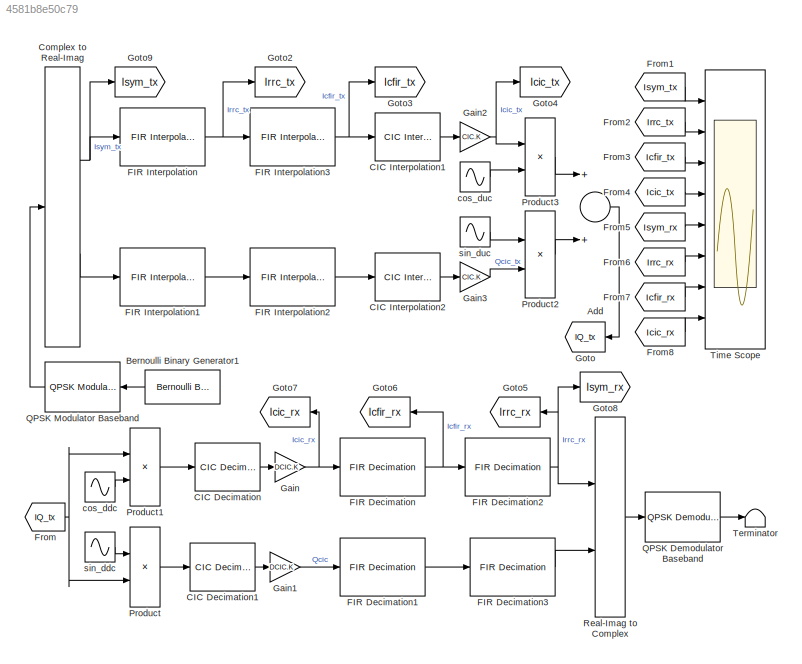
MODEL slx_4581b8e50c79
KIND model
CONFIG AbsTol = auto
CONFIG EnableMultiTasking = off
CONFIG FixedStep = auto
CONFIG MaxStep = auto
CONFIG MinStep = auto
CONFIG PreLoadFcn = fs=1e8;\npr731_DUC_setup\npr734_DDC_setup;\nfc=40e6;
CONFIG RelTol = 1e-3
CONFIG SampleTimeConstraint = Unconstrained
CONFIG Solver = VariableStepAuto
CONFIG SolverName = VariableStepAuto
CONFIG StartTime = 0.0
CONFIG StopTime = 2048/fs
BLOCK [Sum] Add
  InputSameDT = off
  OutDataTypeStr = Inherit: Inherit via internal rule
  Ports = [2, 1]
  SaturateOnIntegerOverflow = off
BLOCK [Reference] Bernoulli Binary Generator1  REF=commrandsrc3/Bernoulli Binary
Generator
  Ports = [0, 1]
  SourceBlock = commrandsrc3/Bernoulli Binary\nGenerator
  SourceProductBaseCode = CM
  SourceProductName = Communications System Toolbox
  SourceType = Bernoulli Binary Generator
BLOCK [Reference] CIC Decimation  REF=dspmlti4/CIC
Decimation
  Ports = [1, 1]
  SourceBlock = dspmlti4/CIC\nDecimation
  SourceProductBaseCode = DS
  SourceProductName = DSP System Toolbox
  SourceType = CIC Decimation
  UserDataPersistent = on
BLOCK [Reference] CIC Decimation1  REF=dspmlti4/CIC
Decimation
  Ports = [1, 1]
  SourceBlock = dspmlti4/CIC\nDecimation
  SourceProductBaseCode = DS
  SourceProductName = DSP System Toolbox
  SourceType = CIC Decimation
  UserDataPersistent = on
BLOCK [Reference] CIC Interpolation1  REF=dspmlti4/CIC
Interpolation
  Ports = [1, 1]
  SourceBlock = dspmlti4/CIC\nInterpolation
  SourceProductBaseCode = DS
  SourceProductName = DSP System Toolbox
  SourceType = CIC Interpolation
  UserDataPersistent = on
BLOCK [Reference] CIC Interpolation2  REF=dspmlti4/CIC
Interpolation
  Ports = [1, 1]
  SourceBlock = dspmlti4/CIC\nInterpolation
  SourceProductBaseCode = DS
  SourceProductName = DSP System Toolbox
  SourceType = CIC Interpolation
  UserDataPersistent = on
BLOCK [ComplexToRealImag] Complex to Real-Imag
  Ports = [1, 2]
BLOCK [Reference] FIR Decimation  REF=dspmlti4/FIR
Decimation
  Ports = [1, 1]
  SourceBlock = dspmlti4/FIR\nDecimation
  SourceProductBaseCode = DS
  SourceProductName = DSP System Toolbox
  SourceType = FIR Decimation
  UserDataPersistent = on
BLOCK [Reference] FIR Decimation1  REF=dspmlti4/FIR
Decimation
  Ports = [1, 1]
  SourceBlock = dspmlti4/FIR\nDecimation
  SourceProductBaseCode = DS
  SourceProductName = DSP System Toolbox
  SourceType = FIR Decimation
  UserDataPersistent = on
BLOCK [Reference] FIR Decimation2  REF=dspmlti4/FIR
Decimation
  Ports = [1, 1]
  SourceBlock = dspmlti4/FIR\nDecimation
  SourceProductBaseCode = DS
  SourceProductName = DSP System Toolbox
  SourceType = FIR Decimation
  UserDataPersistent = on
BLOCK [Reference] FIR Decimation3  REF=dspmlti4/FIR
Decimation
  Ports = [1, 1]
  SourceBlock = dspmlti4/FIR\nDecimation
  SourceProductBaseCode = DS
  SourceProductName = DSP System Toolbox
  SourceType = FIR Decimation
  UserDataPersistent = on
BLOCK [Reference] FIR Interpolation  REF=dspmlti4/FIR
Interpolation
  Ports = [1, 1]
  SourceBlock = dspmlti4/FIR\nInterpolation
  SourceProductBaseCode = DS
  SourceProductName = DSP System Toolbox
  SourceType = FIR Interpolation
  UserDataPersistent = on
BLOCK [Reference] FIR Interpolation1  REF=dspmlti4/FIR
Interpolation
  Ports = [1, 1]
  SourceBlock = dspmlti4/FIR\nInterpolation
  SourceProductBaseCode = DS
  SourceProductName = DSP System Toolbox
  SourceType = FIR Interpolation
  UserDataPersistent = on
BLOCK [Reference] FIR Interpolation2  REF=dspmlti4/FIR
Interpolation
  Ports = [1, 1]
  SourceBlock = dspmlti4/FIR\nInterpolation
  SourceProductBaseCode = DS
  SourceProductName = DSP System Toolbox
  SourceType = FIR Interpolation
  UserDataPersistent = on
BLOCK [Reference] FIR Interpolation3  REF=dspmlti4/FIR
Interpolation
  Ports = [1, 1]
  SourceBlock = dspmlti4/FIR\nInterpolation
  SourceProductBaseCode = DS
  SourceProductName = DSP System Toolbox
  SourceType = FIR Interpolation
  UserDataPersistent = on
BLOCK [From] From
  GotoTag = IQ_tx
BLOCK [From] From1
  GotoTag = Isym_tx
BLOCK [From] From2
  GotoTag = Irrc_tx
BLOCK [From] From3
  GotoTag = Icfir_tx
BLOCK [From] From4
  GotoTag = Icic_tx
BLOCK [From] From5
  GotoTag = Isym_rx
BLOCK [From] From6
  GotoTag = Irrc_rx
BLOCK [From] From7
  GotoTag = Icfir_rx
BLOCK [From] From8
  GotoTag = Icic_rx
BLOCK [Gain] Gain
  Gain = DCIC.K
  OutDataTypeStr = fixdt(1,16)
  OutMax = 1
  OutMin = -1
  ParamDataTypeStr = Inherit: Inherit via internal rule
  SaturateOnIntegerOverflow = off
BLOCK [Gain] Gain1
  Gain = DCIC.K
  OutDataTypeStr = fixdt(1,16)
  OutMax = 1
  OutMin = -1
  ParamDataTypeStr = Inherit: Inherit via internal rule
  SaturateOnIntegerOverflow = off
BLOCK [Gain] Gain2
  Gain = CIC.K
  OutDataTypeStr = fixdt(1,16)
  OutMax = 1
  OutMin = -1
  ParamDataTypeStr = Inherit: Inherit via internal rule
  SaturateOnIntegerOverflow = off
BLOCK [Gain] Gain3
  Gain = CIC.K
  OutDataTypeStr = fixdt(1,16)
  OutMax = 1
  OutMin = -1
  ParamDataTypeStr = Inherit: Inherit via internal rule
  SaturateOnIntegerOverflow = off
BLOCK [Goto] Goto
  GotoTag = IQ_tx
BLOCK [Goto] Goto2
  GotoTag = Irrc_tx
BLOCK [Goto] Goto3
  GotoTag = Icfir_tx
BLOCK [Goto] Goto4
  GotoTag = Icic_tx
BLOCK [Goto] Goto5
  GotoTag = Irrc_rx
BLOCK [Goto] Goto6
  GotoTag = Icfir_rx
BLOCK [Goto] Goto7
  GotoTag = Icic_rx
BLOCK [Goto] Goto8
  GotoTag = Isym_rx
BLOCK [Goto] Goto9
  GotoTag = Isym_tx
BLOCK [Product] Product
  InputSameDT = off
  OutDataTypeStr = fixdt(1,16)
  OutMax = -1
  OutMin = -1
  Ports = [2, 1]
  RndMeth = Floor
  SaturateOnIntegerOverflow = off
BLOCK [Product] Product1
  InputSameDT = off
  OutDataTypeStr = fixdt(1,16)
  OutMax = 1
  OutMin = -1
  Ports = [2, 1]
  RndMeth = Floor
  SaturateOnIntegerOverflow = off
BLOCK [Product] Product2
  InputSameDT = off
  OutDataTypeStr = Inherit: Inherit via internal rule
  Ports = [2, 1]
  RndMeth = Floor
  SaturateOnIntegerOverflow = off
BLOCK [Product] Product3
  InputSameDT = off
  OutDataTypeStr = Inherit: Inherit via internal rule
  Ports = [2, 1]
  RndMeth = Floor
  SaturateOnIntegerOverflow = off
BLOCK [Reference] QPSK Demodulator Baseband  REF=commdigbbndpm3/QPSK
Demodulator
Baseband
  Ports = [1, 1]
  SourceBlock = commdigbbndpm3/QPSK\nDemodulator\nBaseband
  SourceProductBaseCode = CM
  SourceProductName = Communications System Toolbox
  SourceType = QPSK Demodulator Baseband
BLOCK [Reference] QPSK Modulator Baseband  REF=commdigbbndpm3/QPSK
Modulator
Baseband
  Ports = [1, 1]
  SourceBlock = commdigbbndpm3/QPSK\nModulator\nBaseband
  SourceProductBaseCode = CM
  SourceProductName = Communications System Toolbox
  SourceType = QPSK Modulator Baseband
BLOCK [RealImagToComplex] Real-Imag to Complex
  Ports = [2, 1]
BLOCK [Terminator] Terminator
BLOCK [Scope] Time Scope
  DefaultConfigurationName = spbscopes.TimeScopeBlockCfg
  Floating = off
  NumInputPorts = 8
  Ports = [8]
  ScopeSpecificationString = spbscopes.TimeScopeBlockCfg('CurrentConfiguration', extmgr.ConfigurationSet(extmgr.Configuration('Core','General UI',true,'FigureColor',[1 1 1]),extmgr.Configuration('Core','Source UI',true),extmgr.Configuration('Sources','WiredSimulink',true),extmgr.Configuration('Visuals','Time Domain',true,'DisplayLayoutDimensions',[4 2],'DisplayPropertyDefaults',struct('YLabelReal','Amplitude','AxesColor',[1 1...<+7371ch>
  UserDataPersistent = on
BLOCK [Sin] cos_ddc
  Frequency = fc*2*pi
  Phase = pi/2
  Ports = [0, 1]
  SampleTime = 1/fs
BLOCK [Sin] cos_duc
  Frequency = fc*2*pi
  Phase = pi/2
  Ports = [0, 1]
  SampleTime = 1/fs
BLOCK [Sin] sin_ddc
  Frequency = fc*2*pi
  Ports = [0, 1]
  SampleTime = 1/fs
BLOCK [Sin] sin_duc
  Frequency = fc*2*pi
  Ports = [0, 1]
  SampleTime = 1/fs
LINE Add:1 -> Goto:1
LINE Bernoulli Binary Generator1:1 -> QPSK Modulator Baseband:1
LINE CIC Decimation1:1 -> Gain1:1
LINE CIC Decimation:1 -> Gain:1
LINE CIC Interpolation1:1 -> Gain2:1
LINE CIC Interpolation2:1 -> Gain3:1
NET Complex to Real-Imag:1 -> FIR Interpolation:1, Goto9:1
LINE Complex to Real-Imag:2 -> FIR Interpolation1:1
LINE FIR Decimation1:1 -> FIR Decimation3:1
NET FIR Decimation2:1 -> Goto5:1, Goto8:1, Real-Imag to Complex:1
LINE FIR Decimation3:1 -> Real-Imag to Complex:2
NET FIR Decimation:1 -> FIR Decimation2:1, Goto6:1
LINE FIR Interpolation1:1 -> FIR Interpolation2:1
LINE FIR Interpolation2:1 -> CIC Interpolation2:1
NET FIR Interpolation3:1 -> CIC Interpolation1:1, Goto3:1
NET FIR Interpolation:1 -> FIR Interpolation3:1, Goto2:1
LINE From1:1 -> Time Scope:1
LINE From2:1 -> Time Scope:2
LINE From3:1 -> Time Scope:3
LINE From4:1 -> Time Scope:4
LINE From5:1 -> Time Scope:5
LINE From6:1 -> Time Scope:6
LINE From7:1 -> Time Scope:7
LINE From8:1 -> Time Scope:8
NET From:1 -> Product1:1, Product:2
LINE Gain1:1 -> FIR Decimation1:1
NET Gain2:1 -> Goto4:1, Product3:1
LINE Gain3:1 -> Product2:2
NET Gain:1 -> FIR Decimation:1, Goto7:1
LINE Product1:1 -> CIC Decimation:1
LINE Product2:1 -> Add:2
LINE Product3:1 -> Add:1
LINE Product:1 -> CIC Decimation1:1
LINE QPSK Demodulator Baseband:1 -> Terminator:1
LINE QPSK Modulator Baseband:1 -> Complex to Real-Imag:1
LINE Real-Imag to Complex:1 -> QPSK Demodulator Baseband:1
LINE cos_ddc:1 -> Product1:2
LINE cos_duc:1 -> Product3:2
LINE sin_ddc:1 -> Product:1
LINE sin_duc:1 -> Product2:1
note: NET lines group one-source signal fan-out (src -> all destinations, sorted); 1:1 wires keep LINE
